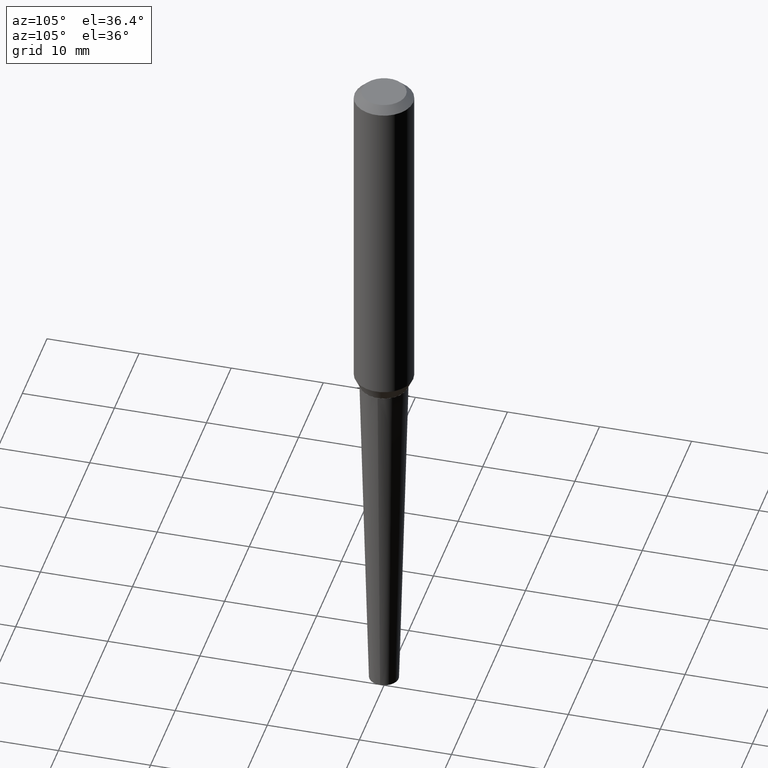
[diagram: clean part render]
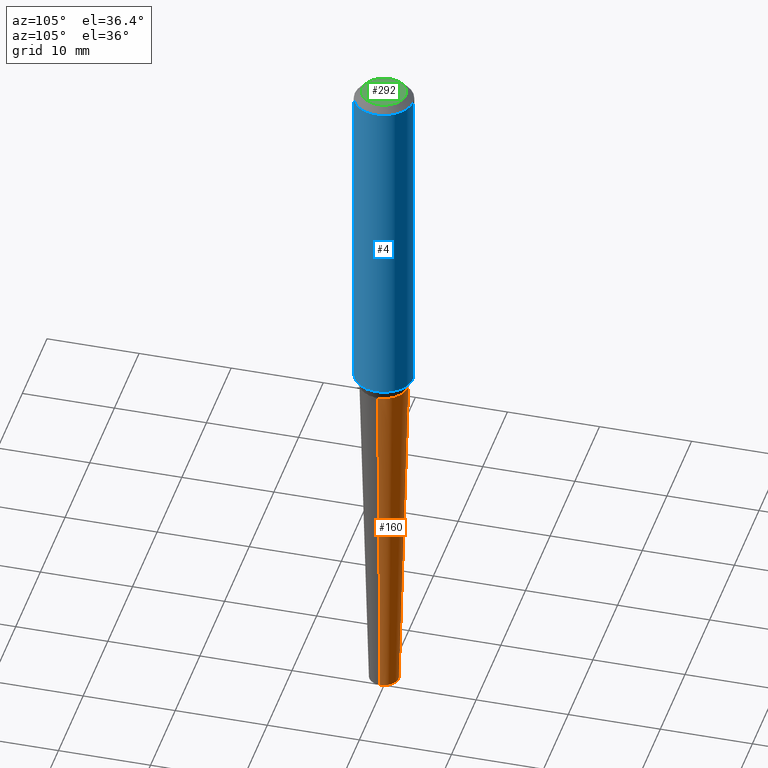
[diagram: same view with three faces highlighted in distinct colors, each labeled with its STEP entity id]
A machine part, auxiliary view with three faces highlighted in distinct colors.
Their STEP definitions:

[orange] entity #160 — the highlighted conical surface has half-angle 1.5 deg.
#7 = CARTESIAN_POINT ( 'NONE',  ( -0.1017788823537697646, -4.514039553162187952E-15, -1.500000000000000222 ) ) ;
#9 = CARTESIAN_POINT ( 'NONE',  ( 3.668203209277704895E-29, -5.237222008264718177E-15, -1.500000000000000222 ) ) ;
#14 = ORIENTED_EDGE ( 'NONE', *, *, #144, .F. ) ;
#34 = EDGE_CURVE ( 'NONE', #52, #225, #180, .T. ) ;
#46 = ORIENTED_EDGE ( 'NONE', *, *, #34, .T. ) ;
#52 = VERTEX_POINT ( 'NONE', #411 ) ;
#59 = DIRECTION ( 'NONE',  ( 0.02617694830786594651, 3.307492242340466707E-15, 0.9996573249755573709 ) ) ;
#60 = CARTESIAN_POINT ( 'NONE',  ( -0.06250000000000018041, -1.003035480667937216E-14, -3.000000000000000444 ) ) ;
#62 = DIRECTION ( 'NONE',  ( 1.000000000000000000, -6.982962677686273810E-15, 0.000000000000000000 ) ) ;
#76 = CIRCLE ( 'NONE', #157, 0.1017788823537697646 ) ;
#86 = CARTESIAN_POINT ( 'NONE',  ( 0.06250000000000018041, -1.091087918388483118E-14, -3.000000000000000444 ) ) ;
#120 = CARTESIAN_POINT ( 'NONE',  ( 0.1017788823537697646, -5.947940145117713967E-15, -1.500000000000000222 ) ) ;
#128 = DIRECTION ( 'NONE',  ( -2.445468806185136597E-29, 3.491481338843145583E-15, 1.000000000000000000 ) ) ;
#134 = VERTEX_POINT ( 'NONE', #120 ) ;
#144 = EDGE_CURVE ( 'NONE', #171, #134, #252, .T. ) ;
#157 = AXIS2_PLACEMENT_3D ( 'NONE', #9, #128, #328 ) ;
#160 = ADVANCED_FACE ( 'NONE', ( #255 ), #263, .T. ) ;
#170 = VECTOR ( 'NONE', #59, 39.37007874015748143 ) ;
#171 = VERTEX_POINT ( 'NONE', #388 ) ;
#180 = LINE ( 'NONE', #60, #389 ) ;
#182 = CIRCLE ( 'NONE', #242, 0.06250000000000018041 ) ;
#184 = CARTESIAN_POINT ( 'NONE',  ( 7.336406418555409790E-29, -1.047444401652943635E-14, -3.000000000000000444 ) ) ;
#204 = AXIS2_PLACEMENT_3D ( 'NONE', #184, #221, #383 ) ;
#211 = ORIENTED_EDGE ( 'NONE', *, *, #235, .F. ) ;
#221 = DIRECTION ( 'NONE',  ( -2.445468806185136597E-29, 3.491481338843145583E-15, 1.000000000000000000 ) ) ;
#225 = VERTEX_POINT ( 'NONE', #7 ) ;
#233 = DIRECTION ( 'NONE',  ( -2.445468806185136597E-29, 3.491481338843145583E-15, 1.000000000000000000 ) ) ;
#235 = EDGE_CURVE ( 'NONE', #134, #225, #76, .T. ) ;
#242 = AXIS2_PLACEMENT_3D ( 'NONE', #398, #233, #62 ) ;
#252 = LINE ( 'NONE', #86, #170 ) ;
#255 = FACE_OUTER_BOUND ( 'NONE', #405, .T. ) ;
#263 = CONICAL_SURFACE ( 'NONE', #204, 0.06250000000000018041, 0.02617993877990773197 ) ;
#277 = ORIENTED_EDGE ( 'NONE', *, *, #311, .T. ) ;
#282 = DIRECTION ( 'NONE',  ( -0.02617694830786594651, 3.676283300035235311E-15, 0.9996573249755573709 ) ) ;
#311 = EDGE_CURVE ( 'NONE', #171, #52, #182, .T. ) ;
#328 = DIRECTION ( 'NONE',  ( 1.000000000000000000, -6.982962677686263555E-15, 0.000000000000000000 ) ) ;
#383 = DIRECTION ( 'NONE',  ( 1.000000000000000000, -6.982962677686273810E-15, 0.000000000000000000 ) ) ;
#388 = CARTESIAN_POINT ( 'NONE',  ( 0.06250000000000018041, -1.091087918388483118E-14, -3.000000000000000444 ) ) ;
#389 = VECTOR ( 'NONE', #282, 39.37007874015748143 ) ;
#398 = CARTESIAN_POINT ( 'NONE',  ( 7.336406418555409790E-29, -1.047444401652943635E-14, -3.000000000000000444 ) ) ;
#405 = EDGE_LOOP ( 'NONE', ( #277, #46, #211, #14 ) ) ;
#411 = CARTESIAN_POINT ( 'NONE',  ( -0.06250000000000018041, -7.272197179920781633E-15, -3.000000000000000444 ) ) ;

[blue] entity #4 — the highlighted cylindrical surface (edge-blend (fillet) strip) has radius 3.175 mm, axis along (-0, 0, 1).
#4 = ADVANCED_FACE ( 'NONE', ( #229 ), #321, .T. ) ;
#11 = ORIENTED_EDGE ( 'NONE', *, *, #299, .T. ) ;
#37 = CARTESIAN_POINT ( 'NONE',  ( -8.728703347107449805E-16, -0.1250000000000046629, -1.450202152505692510 ) ) ;
#39 = DIRECTION ( 'NONE',  ( -6.982962677686265922E-15, -1.000000000000000000, 2.185478394931414125E-15 ) ) ;
#47 = VECTOR ( 'NONE', #155, 39.37007874015748143 ) ;
#72 = EDGE_CURVE ( 'NONE', #273, #166, #284, .T. ) ;
#93 = ORIENTED_EDGE ( 'NONE', *, *, #237, .F. ) ;
#111 = ORIENTED_EDGE ( 'NONE', *, *, #72, .F. ) ;
#112 = DIRECTION ( 'NONE',  ( -2.770215560302487813E-29, 3.026425503509720832E-15, 1.000000000000000000 ) ) ;
#131 = DIRECTION ( 'NONE',  ( -6.982962677686265133E-15, -1.000000000000000000, 3.039180892951480529E-15 ) ) ;
#132 = CARTESIAN_POINT ( 'NONE',  ( 3.677574325608690539E-29, -4.875539203459369329E-15, -1.450202152505692732 ) ) ;
#140 = ORIENTED_EDGE ( 'NONE', *, *, #187, .T. ) ;
#155 = DIRECTION ( 'NONE',  ( -2.770215560302487813E-29, 3.026425503509720832E-15, 1.000000000000000000 ) ) ;
#166 = VERTEX_POINT ( 'NONE', #257 ) ;
#187 = EDGE_CURVE ( 'NONE', #303, #335, #416, .T. ) ;
#229 = FACE_OUTER_BOUND ( 'NONE', #239, .T. ) ;
#234 = AXIS2_PLACEMENT_3D ( 'NONE', #132, #264, #39 ) ;
#237 = EDGE_CURVE ( 'NONE', #166, #335, #370, .T. ) ;
#239 = EDGE_LOOP ( 'NONE', ( #11, #140, #93, #111 ) ) ;
#256 = VECTOR ( 'NONE', #112, 39.37007874015748143 ) ;
#257 = CARTESIAN_POINT ( 'NONE',  ( -8.575622497214472631E-16, -0.1250000000000010825, -0.03124999999999970163 ) ) ;
#264 = DIRECTION ( 'NONE',  ( -2.770215560302487813E-29, 3.026425503509721227E-15, 1.000000000000000000 ) ) ;
#267 = CARTESIAN_POINT ( 'NONE',  ( 8.881784197001419956E-16, 0.1249999999999949069, -1.450202152505693176 ) ) ;
#271 = AXIS2_PLACEMENT_3D ( 'NONE', #295, #293, #131 ) ;
#273 = VERTEX_POINT ( 'NONE', #37 ) ;
#278 = DIRECTION ( 'NONE',  ( -6.982962677686266711E-15, -1.000000000000000000, 3.026425503509721621E-15 ) ) ;
#284 = LINE ( 'NONE', #317, #256 ) ;
#293 = DIRECTION ( 'NONE',  ( -2.770215560302487813E-29, 3.026425503509721227E-15, 1.000000000000000000 ) ) ;
#295 = CARTESIAN_POINT ( 'NONE',  ( -2.532290065872877801E-30, -5.811862208561258652E-16, -0.03125000000000008327 ) ) ;
#299 = EDGE_CURVE ( 'NONE', #273, #303, #324, .T. ) ;
#303 = VERTEX_POINT ( 'NONE', #267 ) ;
#317 = CARTESIAN_POINT ( 'NONE',  ( -8.728703347107876776E-16, -0.1250000000000006384, 3.974270424715535980E-16 ) ) ;
#319 = CARTESIAN_POINT ( 'NONE',  ( 8.881784197001227671E-16, 0.1249999999999996808, -3.591793334058776454E-16 ) ) ;
#321 = CYLINDRICAL_SURFACE ( 'NONE', #351, 0.1250000000000001388 ) ;
#324 = CIRCLE ( 'NONE', #234, 0.1249999999999997918 ) ;
#327 = CARTESIAN_POINT ( 'NONE',  ( 8.728703347107841277E-16, 0.1249999999999999167, -0.03125000000000045797 ) ) ;
#335 = VERTEX_POINT ( 'NONE', #327 ) ;
#337 = DIRECTION ( 'NONE',  ( -2.770215560302487813E-29, 3.026425503509721227E-15, 1.000000000000000000 ) ) ;
#351 = AXIS2_PLACEMENT_3D ( 'NONE', #371, #337, #278 ) ;
#370 = CIRCLE ( 'NONE', #271, 0.1250000000000004996 ) ;
#371 = CARTESIAN_POINT ( 'NONE',  ( -3.397982428467408395E-30, -4.866104238714468673E-16, 1.912385453283800096E-17 ) ) ;
#416 = LINE ( 'NONE', #319, #47 ) ;

[green] entity #292 — the highlighted planar face has unit normal (0, -0, -1).
#10 = DIRECTION ( 'NONE',  ( 2.770215560302487813E-29, -3.026425503509720832E-15, -1.000000000000000000 ) ) ;
#40 = DIRECTION ( 'NONE',  ( 6.982962677686265922E-15, 1.000000000000000000, -3.026425503509720832E-15 ) ) ;
#42 = CARTESIAN_POINT ( 'NONE',  ( -7.503669685062676741E-16, -0.09375000000000098532, 2.785450188024345684E-16 ) ) ;
#43 = EDGE_LOOP ( 'NONE', ( #410, #374 ) ) ;
#64 = AXIS2_PLACEMENT_3D ( 'NONE', #99, #231, #390 ) ;
#82 = CIRCLE ( 'NONE', #64, 0.09375000000000049960 ) ;
#97 = CARTESIAN_POINT ( 'NONE',  ( 6.546527510330876027E-16, 0.09375000000000002776, -2.767566497634205616E-16 ) ) ;
#99 = CARTESIAN_POINT ( 'NONE',  ( -3.397982428467407694E-30, -4.866104238714468673E-16, -5.182372151603375100E-18 ) ) ;
#116 = DIRECTION ( 'NONE',  ( -6.982962677686265922E-15, -1.000000000000000000, 3.026425503509721621E-15 ) ) ;
#149 = AXIS2_PLACEMENT_3D ( 'NONE', #97, #10, #40 ) ;
#151 = CARTESIAN_POINT ( 'NONE',  ( -3.397982428467407694E-30, -4.866104238714468673E-16, -5.182372151603375100E-18 ) ) ;
#156 = EDGE_CURVE ( 'NONE', #399, #403, #414, .T. ) ;
#169 = CARTESIAN_POINT ( 'NONE',  ( 7.637615428719357173E-16, 0.09375000000000002776, -2.889097631056412924E-16 ) ) ;
#195 = AXIS2_PLACEMENT_3D ( 'NONE', #151, #415, #116 ) ;
#231 = DIRECTION ( 'NONE',  ( -2.770215560302487813E-29, 3.026425503509721227E-15, 1.000000000000000000 ) ) ;
#285 = EDGE_CURVE ( 'NONE', #403, #399, #82, .T. ) ;
#292 = ADVANCED_FACE ( 'NONE', ( #296 ), #361, .F. ) ;
#296 = FACE_OUTER_BOUND ( 'NONE', #43, .T. ) ;
#361 = PLANE ( 'NONE',  #149 ) ;
#374 = ORIENTED_EDGE ( 'NONE', *, *, #285, .T. ) ;
#390 = DIRECTION ( 'NONE',  ( -6.982962677686265922E-15, -1.000000000000000000, 3.026425503509721621E-15 ) ) ;
#399 = VERTEX_POINT ( 'NONE', #169 ) ;
#403 = VERTEX_POINT ( 'NONE', #42 ) ;
#410 = ORIENTED_EDGE ( 'NONE', *, *, #156, .T. ) ;
#414 = CIRCLE ( 'NONE', #195, 0.09375000000000049960 ) ;
#415 = DIRECTION ( 'NONE',  ( -2.770215560302487813E-29, 3.026425503509721227E-15, 1.000000000000000000 ) ) ;